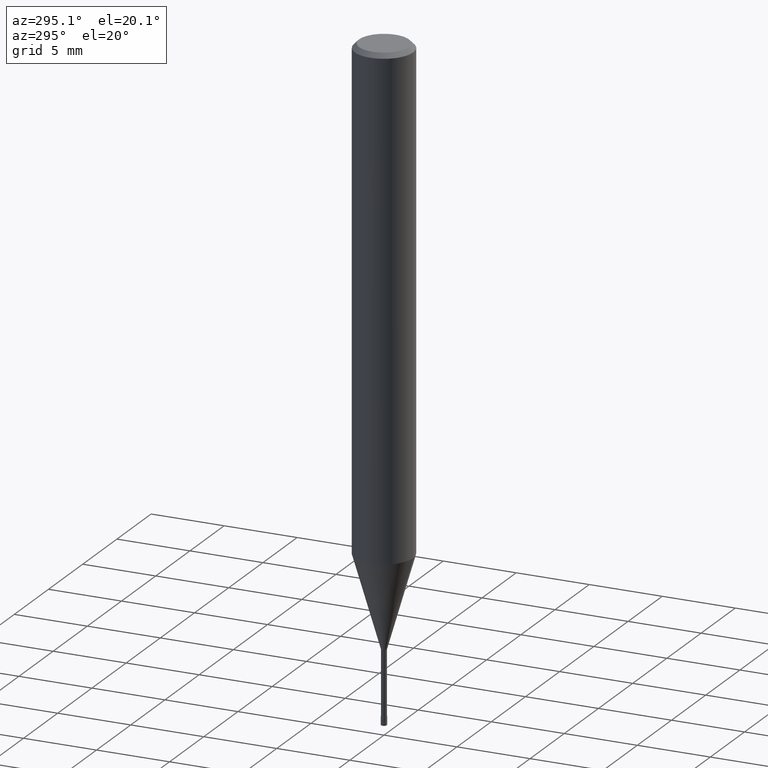
[diagram: clean part render]
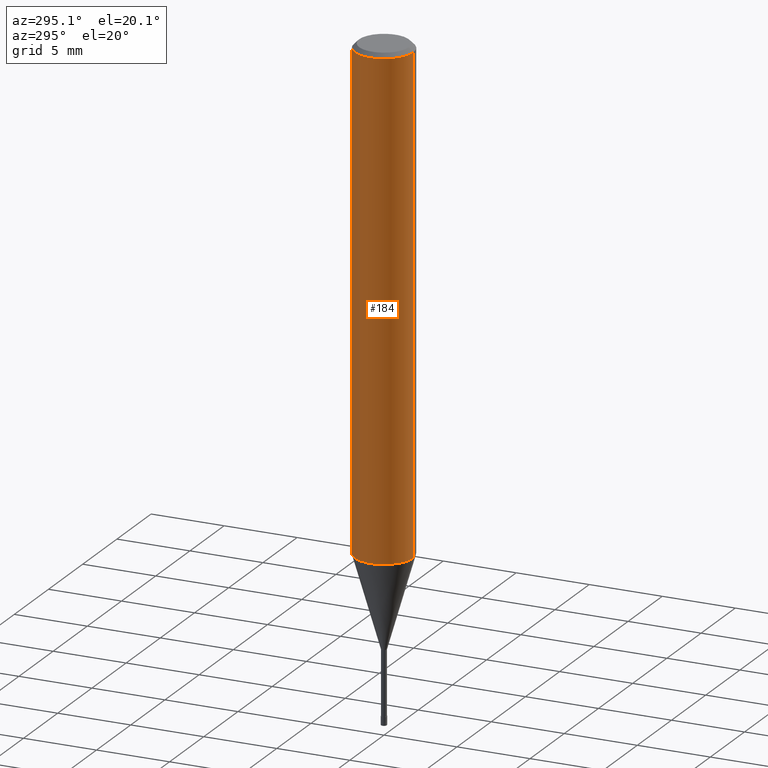
[diagram: same view with one face highlighted and labeled with its STEP entity id]
A machine part, auxiliary view. The second image highlights one B-rep face of the part: STEP entity #184.
In plain terms, the highlighted cylindrical surface (edge-blend (fillet) strip) has radius 2 mm, axis along (-0, -0, 1).
Its self-contained STEP definition (entity closure, byte-faithful):
#100=EDGE_CURVE('',#132,#106,#238,.T.);
#106=VERTEX_POINT('',#244);
#116=VERTEX_POINT('',#256);
#126=EDGE_CURVE('',#116,#196,#266,.T.);
#132=VERTEX_POINT('',#273);
#152=EDGE_CURVE('',#106,#116,#294,.T.);
#178=EDGE_CURVE('',#132,#196,#324,.T.);
#184=ADVANCED_FACE('',(#333),#334,.T.);
#196=VERTEX_POINT('',#347);
#238=LINE('',#386,#387);
#244=CARTESIAN_POINT('',(2.44921270764475E-016,-2.0,-0.299999999999997));
#256=CARTESIAN_POINT('',(0.0,2.0,-0.299999999999997));
#266=LINE('',#425,#426);
#273=CARTESIAN_POINT('',(2.44921270764475E-016,-2.0,-33.688));
#294=CIRCLE('',#463,2.0);
#324=CIRCLE('',#499,2.0);
#333=FACE_OUTER_BOUND('',#508,.T.);
#334=CYLINDRICAL_SURFACE('',#509,2.0);
#347=CARTESIAN_POINT('',(0.0,2.0,-33.688));
#386=CARTESIAN_POINT('',(2.44921270764475E-016,-2.0,-16.994));
#387=VECTOR('',#556,1.0);
#425=CARTESIAN_POINT('',(-2.44921270764475E-016,2.0,-16.994));
#426=VECTOR('',#583,1.0);
#463=AXIS2_PLACEMENT_3D('',#613,#614,#615);
#499=AXIS2_PLACEMENT_3D('',#655,#656,#657);
#508=EDGE_LOOP('',(#675,#676,#677,#678));
#509=AXIS2_PLACEMENT_3D('',#679,#680,#681);
#556=DIRECTION('',(-0.0,-0.0,1.0));
#583=DIRECTION('',(0.0,0.0,-1.0));
#613=CARTESIAN_POINT('',(0.0,0.0,-0.299999999999997));
#614=DIRECTION('',(0.0,0.0,-1.0));
#615=DIRECTION('',(0.0,1.0,0.0));
#655=CARTESIAN_POINT('',(0.0,0.0,-33.688));
#656=DIRECTION('',(0.0,0.0,-1.0));
#657=DIRECTION('',(0.0,1.0,0.0));
#675=ORIENTED_EDGE('',*,*,#126,.T.);
#676=ORIENTED_EDGE('',*,*,#178,.F.);
#677=ORIENTED_EDGE('',*,*,#100,.T.);
#678=ORIENTED_EDGE('',*,*,#152,.T.);
#679=CARTESIAN_POINT('',(0.0,0.0,-16.994));
#680=DIRECTION('',(-0.0,-0.0,1.0));
#681=DIRECTION('',(0.0,1.0,0.0));